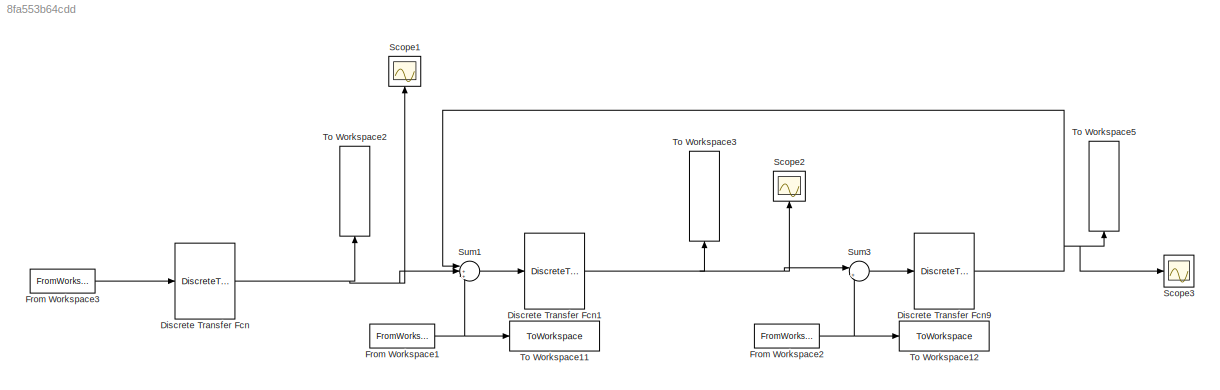
MODEL slx_8fa553b64cdd
KIND model
CONFIG AbsTol = auto
CONFIG EnableMultiTasking = off
CONFIG FixedStep = 1
CONFIG MaxStep = auto
CONFIG MinStep = auto
CONFIG RelTol = 1e-3
CONFIG SampleTimeConstraint = Unconstrained
CONFIG SolverName = FixedStepDiscrete
CONFIG StartTime = 0.0
CONFIG StopTime = 499
BLOCK [DiscreteTransferFcn] Discrete Transfer Fcn
  Denominator = [1 theta(1) theta(2)]
  InputPortMap = u0
  Numerator = [theta(3) theta(4)]
BLOCK [DiscreteTransferFcn] Discrete Transfer Fcn1
  Denominator = [1 theta(7) theta(8)]
  InputPortMap = u0
  Numerator = [theta(9) theta(10)]
BLOCK [DiscreteTransferFcn] Discrete Transfer Fcn9
  Denominator = [1 theta(13) theta(14)]
  InputPortMap = u0
  Numerator = [theta(15) theta(16)]
BLOCK [FromWorkspace] From Workspace1
  Interpolate = off
  OutputAfterFinalValue = Holding final value
  SampleTime = 1
  VariableName = r1
BLOCK [FromWorkspace] From Workspace2
  Interpolate = off
  OutputAfterFinalValue = Holding final value
  SampleTime = 1
  VariableName = r2
BLOCK [FromWorkspace] From Workspace3
  Interpolate = off
  OutputAfterFinalValue = Holding final value
  SampleTime = 1
  VariableName = r_y6
BLOCK [Scope] Scope1
  Floating = off
  NameLocation = right
  NumInputPorts = 1
  ScopeSpecificationString = Simulink.scopes.TimeScopeBlockCfg('CurrentConfiguration', extmgr.ConfigurationSet(extmgr.Configuration('Core','General UI',true),extmgr.Configuration('Core','Source UI',true),extmgr.Configuration('Sources','WiredSimulink',true,'DataLoggingVariableName','ScopeData1'),extmgr.Configuration('Visuals','Time Domain',true,'SerializedDisplays',{struct('MinYLimReal','0.26906','MaxYLimReal','3.57848','YLabe...<+1450ch>
BLOCK [Scope] Scope2
  Floating = off
  NameLocation = right
  NumInputPorts = 1
  ScopeSpecificationString = Simulink.scopes.TimeScopeBlockCfg('CurrentConfiguration', extmgr.ConfigurationSet(extmgr.Configuration('Core','General UI',true),extmgr.Configuration('Core','Source UI',true),extmgr.Configuration('Sources','WiredSimulink',true,'DataLoggingVariableName','ScopeData2'),extmgr.Configuration('Visuals','Time Domain',true,'SerializedDisplays',{struct('MinYLimReal','-0.64899','MaxYLimReal','1.87414','YLab...<+1452ch>
BLOCK [Scope] Scope3
  Floating = off
  NumInputPorts = 1
  ScopeSpecificationString = Simulink.scopes.TimeScopeBlockCfg('CurrentConfiguration', extmgr.ConfigurationSet(extmgr.Configuration('Core','General UI',true),extmgr.Configuration('Core','Source UI',true),extmgr.Configuration('Sources','WiredSimulink',true,'DataLoggingVariableName','ScopeData3'),extmgr.Configuration('Visuals','Time Domain',true,'SerializedDisplays',{struct('MinYLimReal','-2.1513','MaxYLimReal','0.23903','YLabe...<+1448ch>
BLOCK [Sum] Sum1
  Inputs = |+++
BLOCK [Sum] Sum3
  Inputs = |++
BLOCK [ToWorkspace] To Workspace11
  FixptAsFi = on
  MaxDataPoints = inf
  SampleTime = -1
  VariableName = r1
BLOCK [ToWorkspace] To Workspace12
  FixptAsFi = on
  MaxDataPoints = inf
  SampleTime = -1
  VariableName = r2
BLOCK [ToWorkspace] To Workspace2
  FixptAsFi = on
  MaxDataPoints = inf
  NameLocation = right
  SampleTime = -1
  VariableName = y1
BLOCK [ToWorkspace] To Workspace3
  FixptAsFi = on
  MaxDataPoints = inf
  NameLocation = right
  SampleTime = -1
  VariableName = y2
BLOCK [ToWorkspace] To Workspace5
  FixptAsFi = on
  MaxDataPoints = inf
  NameLocation = right
  SampleTime = -1
  VariableName = y3
NET Discrete Transfer Fcn1:1 -> Scope2:1, Sum3:1, To Workspace3:1
NET Discrete Transfer Fcn9:1 -> Scope3:1, Sum1:1, To Workspace5:1
NET Discrete Transfer Fcn:1 -> Scope1:1, Sum1:2, To Workspace2:1
NET From Workspace1:1 -> Sum1:3, To Workspace11:1
NET From Workspace2:1 -> Sum3:2, To Workspace12:1
LINE From Workspace3:1 -> Discrete Transfer Fcn:1
LINE Sum1:1 -> Discrete Transfer Fcn1:1
LINE Sum3:1 -> Discrete Transfer Fcn9:1
note: NET lines group one-source signal fan-out (src -> all destinations, sorted); 1:1 wires keep LINE
